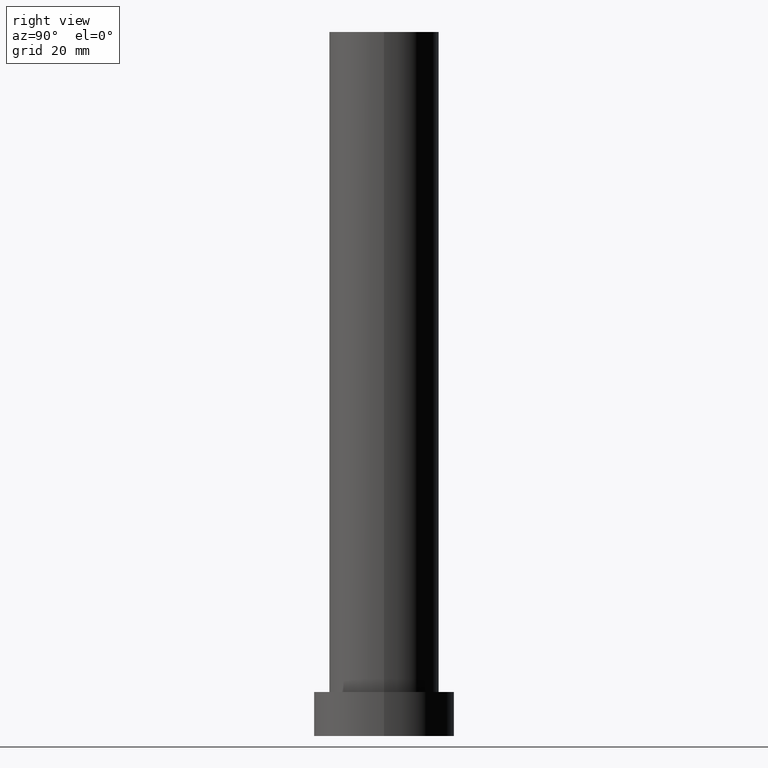
[diagram: clean part render]
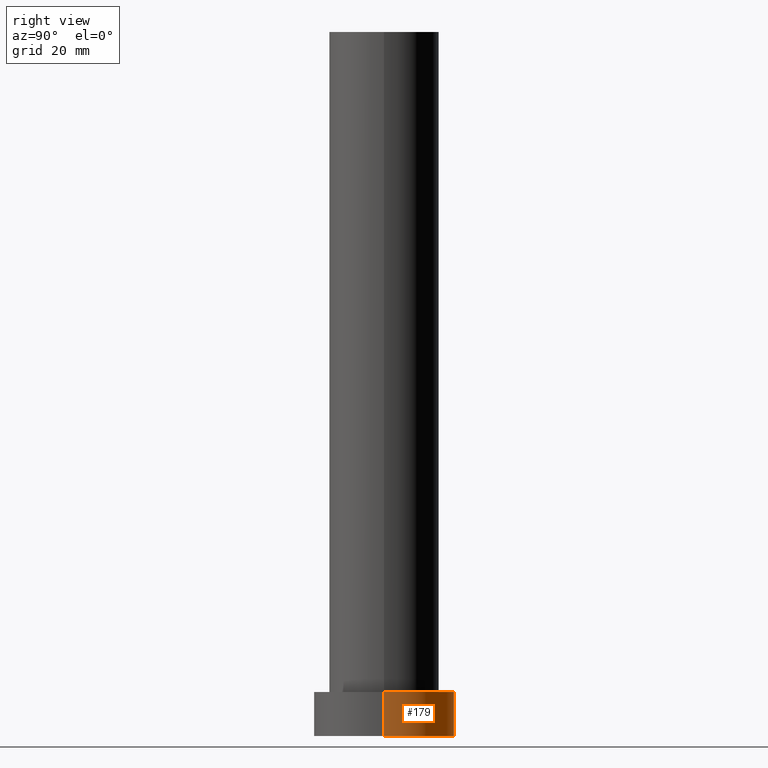
[diagram: same view with one face highlighted and labeled with its STEP entity id]
A machine part, right view. The second image highlights one B-rep face of the part: STEP entity #179.
In plain terms, the highlighted cylindrical surface (partial cylindrical patch) has radius 16 mm, axis along (-0, -0, -1).
Its self-contained STEP definition (entity closure, byte-faithful):
#3 = CARTESIAN_POINT ( 'NONE',  ( -16.00000000000000000, 0.000000000000000000, 10.00000000000000000 ) ) ;
#5 = DIRECTION ( 'NONE',  ( 1.000000000000000000, 0.000000000000000000, 0.000000000000000000 ) ) ;
#10 = EDGE_CURVE ( 'NONE', #165, #107, #78, .T. ) ;
#18 = CIRCLE ( 'NONE', #55, 16.00000000000000000 ) ;
#25 = EDGE_CURVE ( 'NONE', #170, #151, #18, .T. ) ;
#31 = LINE ( 'NONE', #114, #61 ) ;
#33 = ORIENTED_EDGE ( 'NONE', *, *, #25, .F. ) ;
#35 = DIRECTION ( 'NONE',  ( -0.000000000000000000, -0.000000000000000000, -1.000000000000000000 ) ) ;
#44 = EDGE_LOOP ( 'NONE', ( #33, #63, #76, #125 ) ) ;
#55 = AXIS2_PLACEMENT_3D ( 'NONE', #71, #87, #155 ) ;
#61 = VECTOR ( 'NONE', #191, 1000.000000000000000 ) ;
#63 = ORIENTED_EDGE ( 'NONE', *, *, #206, .T. ) ;
#67 = CARTESIAN_POINT ( 'NONE',  ( 0.000000000000000000, 0.000000000000000000, 10.00000000000000000 ) ) ;
#71 = CARTESIAN_POINT ( 'NONE',  ( 0.000000000000000000, 0.000000000000000000, 10.00000000000000000 ) ) ;
#76 = ORIENTED_EDGE ( 'NONE', *, *, #10, .T. ) ;
#78 = CIRCLE ( 'NONE', #138, 16.00000000000000000 ) ;
#84 = FACE_OUTER_BOUND ( 'NONE', #44, .T. ) ;
#86 = VECTOR ( 'NONE', #35, 1000.000000000000000 ) ;
#87 = DIRECTION ( 'NONE',  ( 0.000000000000000000, 0.000000000000000000, 1.000000000000000000 ) ) ;
#100 = CARTESIAN_POINT ( 'NONE',  ( -16.00000000000000000, 0.000000000000000000, 0.000000000000000000 ) ) ;
#101 = LINE ( 'NONE', #254, #86 ) ;
#103 = CARTESIAN_POINT ( 'NONE',  ( 16.00000000000000000, 1.959434878635765131E-15, 10.00000000000000000 ) ) ;
#107 = VERTEX_POINT ( 'NONE', #100 ) ;
#114 = CARTESIAN_POINT ( 'NONE',  ( 16.00000000000000000, 1.959434878635765131E-15, 10.00000000000000000 ) ) ;
#125 = ORIENTED_EDGE ( 'NONE', *, *, #139, .F. ) ;
#138 = AXIS2_PLACEMENT_3D ( 'NONE', #186, #246, #5 ) ;
#139 = EDGE_CURVE ( 'NONE', #151, #107, #101, .T. ) ;
#148 = DIRECTION ( 'NONE',  ( -0.000000000000000000, -0.000000000000000000, -1.000000000000000000 ) ) ;
#151 = VERTEX_POINT ( 'NONE', #3 ) ;
#155 = DIRECTION ( 'NONE',  ( 1.000000000000000000, 0.000000000000000000, 0.000000000000000000 ) ) ;
#164 = CARTESIAN_POINT ( 'NONE',  ( 16.00000000000000000, 1.959434878635765131E-15, 0.000000000000000000 ) ) ;
#165 = VERTEX_POINT ( 'NONE', #164 ) ;
#169 = CYLINDRICAL_SURFACE ( 'NONE', #198, 16.00000000000000000 ) ;
#170 = VERTEX_POINT ( 'NONE', #103 ) ;
#179 = ADVANCED_FACE ( 'NONE', ( #84 ), #169, .T. ) ;
#186 = CARTESIAN_POINT ( 'NONE',  ( 0.000000000000000000, 0.000000000000000000, 0.000000000000000000 ) ) ;
#191 = DIRECTION ( 'NONE',  ( -0.000000000000000000, -0.000000000000000000, -1.000000000000000000 ) ) ;
#198 = AXIS2_PLACEMENT_3D ( 'NONE', #67, #148, #222 ) ;
#206 = EDGE_CURVE ( 'NONE', #170, #165, #31, .T. ) ;
#222 = DIRECTION ( 'NONE',  ( -1.000000000000000000, 0.000000000000000000, 0.000000000000000000 ) ) ;
#246 = DIRECTION ( 'NONE',  ( 0.000000000000000000, 0.000000000000000000, 1.000000000000000000 ) ) ;
#254 = CARTESIAN_POINT ( 'NONE',  ( -16.00000000000000000, 0.000000000000000000, 10.00000000000000000 ) ) ;